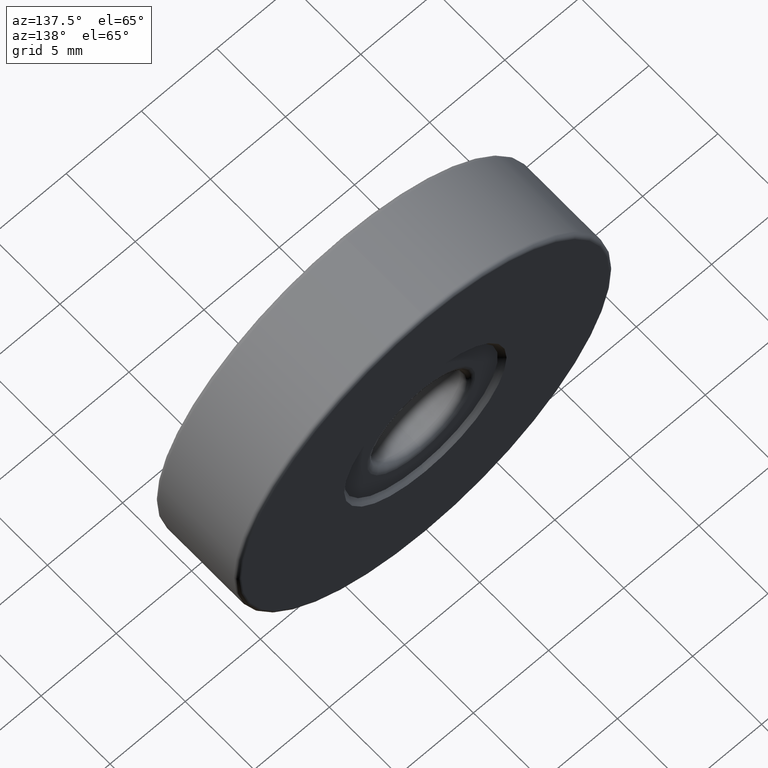
[diagram: clean part render]
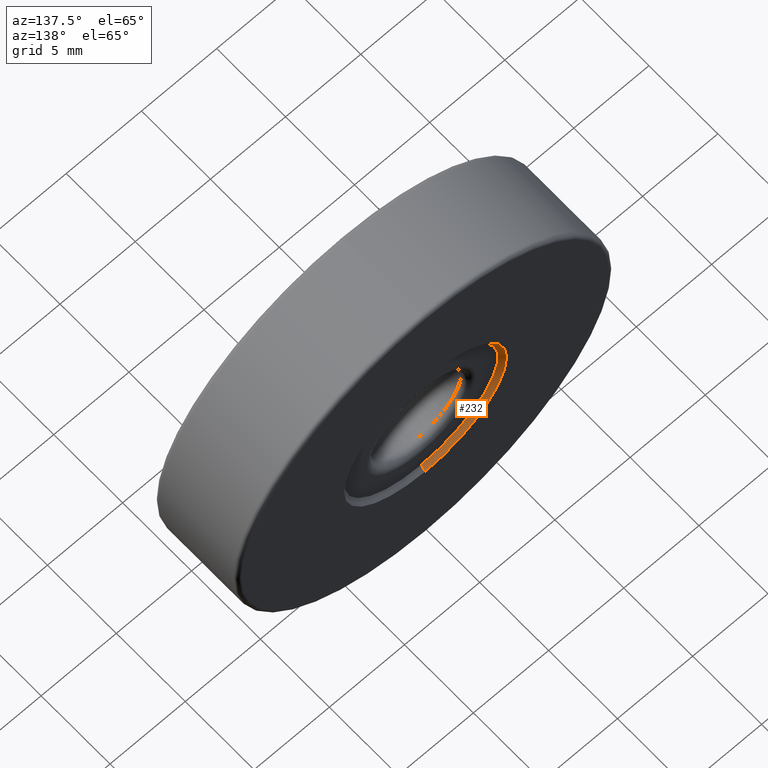
[diagram: same view with one face highlighted and labeled with its STEP entity id]
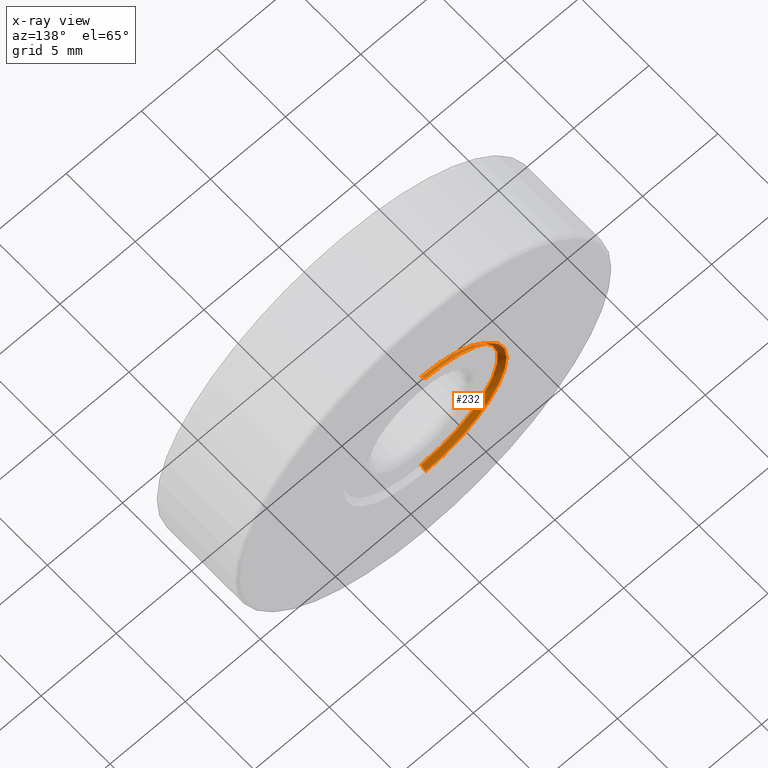
[diagram: x-ray of the same camera — body ghosted, the highlighted face saturated]
A machine part, auxiliary view. The second image highlights one B-rep face of the part: STEP entity #232.
The next image is the same camera in x-ray: the body ghosted, the highlighted face saturated — about 0% of this face is hidden behind the body in this view.
In plain terms, the highlighted conical surface has half-angle 45 deg.
Its self-contained STEP definition (entity closure, byte-faithful):
#15 = CARTESIAN_POINT ( 'NONE',  ( -4.682026255059964726, 1.105024023001728750, 25.00000000000000000 ) ) ;
#22 = DIRECTION ( 'NONE',  ( -0.0000000000000000000, -1.000000000000000000, -0.0000000000000000000 ) ) ;
#24 = VERTEX_POINT ( 'NONE', #240 ) ;
#34 = VECTOR ( 'NONE', #105, 1000.000000000000000 ) ;
#41 = VERTEX_POINT ( 'NONE', #428 ) ;
#66 = ORIENTED_EDGE ( 'NONE', *, *, #226, .F. ) ;
#68 = CARTESIAN_POINT ( 'NONE',  ( -4.682026255059963837, 1.105024023001728750, 19.90000000000000213 ) ) ;
#69 = VERTEX_POINT ( 'NONE', #617 ) ;
#76 = AXIS2_PLACEMENT_3D ( 'NONE', #15, #553, #218 ) ;
#105 = DIRECTION ( 'NONE',  ( 0.0000000000000000000, 0.7071067811865444641, 0.7071067811865505703 ) ) ;
#150 = DIRECTION ( 'NONE',  ( 0.0000000000000000000, 0.0000000000000000000, 1.000000000000000000 ) ) ;
#196 = AXIS2_PLACEMENT_3D ( 'NONE', #285, #293, #150 ) ;
#218 = DIRECTION ( 'NONE',  ( 0.0000000000000000000, 0.0000000000000000000, 1.000000000000000000 ) ) ;
#226 = EDGE_CURVE ( 'NONE', #69, #24, #345, .T. ) ;
#232 = ADVANCED_FACE ( 'NONE', ( #256 ), #372, .F. ) ;
#240 = CARTESIAN_POINT ( 'NONE',  ( -4.682026255059964726, 1.405024023001725242, 30.39999999999999858 ) ) ;
#248 = EDGE_CURVE ( 'NONE', #24, #41, #467, .T. ) ;
#256 = FACE_OUTER_BOUND ( 'NONE', #346, .T. ) ;
#264 = DIRECTION ( 'NONE',  ( 0.0000000000000000000, 0.0000000000000000000, 1.000000000000000000 ) ) ;
#270 = VECTOR ( 'NONE', #503, 1000.000000000000000 ) ;
#285 = CARTESIAN_POINT ( 'NONE',  ( -4.682026255059964726, 1.105024023001725419, 25.00000000000000000 ) ) ;
#286 = EDGE_CURVE ( 'NONE', #367, #41, #312, .T. ) ;
#288 = ORIENTED_EDGE ( 'NONE', *, *, #478, .F. ) ;
#293 = DIRECTION ( 'NONE',  ( 0.0000000000000000000, 1.000000000000000000, 0.0000000000000000000 ) ) ;
#312 = LINE ( 'NONE', #68, #270 ) ;
#321 = AXIS2_PLACEMENT_3D ( 'NONE', #366, #22, #264 ) ;
#345 = LINE ( 'NONE', #534, #34 ) ;
#346 = EDGE_LOOP ( 'NONE', ( #288, #577, #447, #66 ) ) ;
#366 = CARTESIAN_POINT ( 'NONE',  ( -4.682026255059964726, 1.405024023001725242, 25.00000000000000000 ) ) ;
#367 = VERTEX_POINT ( 'NONE', #460 ) ;
#372 = CONICAL_SURFACE ( 'NONE', #76, 5.100000000000000533, 0.7853981633974526089 ) ;
#428 = CARTESIAN_POINT ( 'NONE',  ( -4.682026255059963837, 1.405024023001725242, 19.60000000000000142 ) ) ;
#447 = ORIENTED_EDGE ( 'NONE', *, *, #248, .F. ) ;
#460 = CARTESIAN_POINT ( 'NONE',  ( -4.682026255059963837, 1.105024023001725419, 19.90000000000000213 ) ) ;
#467 = CIRCLE ( 'NONE', #321, 5.399999999999998579 ) ;
#478 = EDGE_CURVE ( 'NONE', #367, #69, #509, .T. ) ;
#503 = DIRECTION ( 'NONE',  ( 8.659560562354969836E-17, 0.7071067811865444641, -0.7071067811865505703 ) ) ;
#509 = CIRCLE ( 'NONE', #196, 5.100000000000000533 ) ;
#534 = CARTESIAN_POINT ( 'NONE',  ( -4.682026255059964726, 1.105024023001728750, 30.10000000000000142 ) ) ;
#553 = DIRECTION ( 'NONE',  ( 0.0000000000000000000, 1.000000000000000000, 0.0000000000000000000 ) ) ;
#577 = ORIENTED_EDGE ( 'NONE', *, *, #286, .T. ) ;
#617 = CARTESIAN_POINT ( 'NONE',  ( -4.682026255059964726, 1.105024023001725419, 30.10000000000000142 ) ) ;